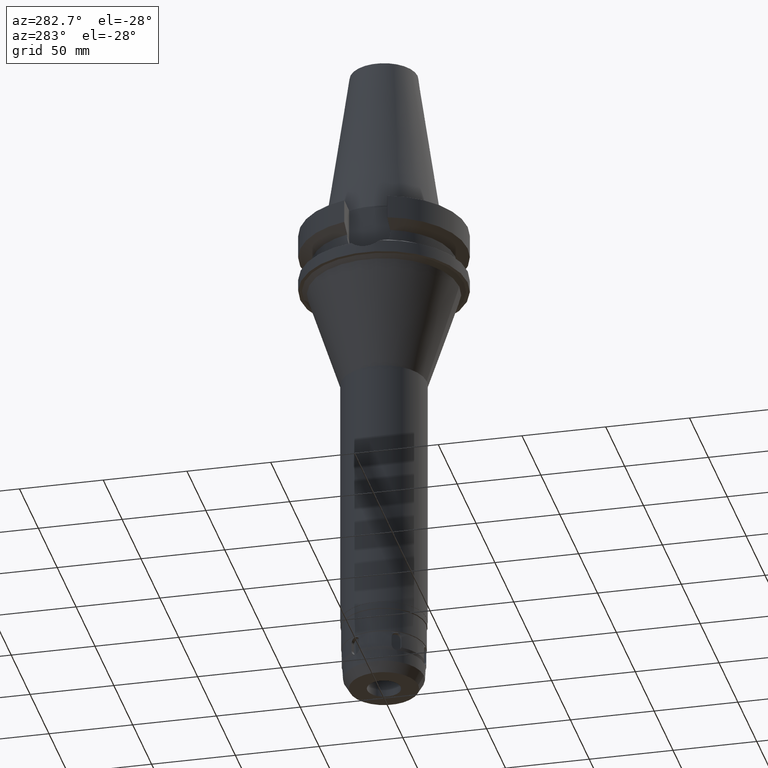
[diagram: clean part render]
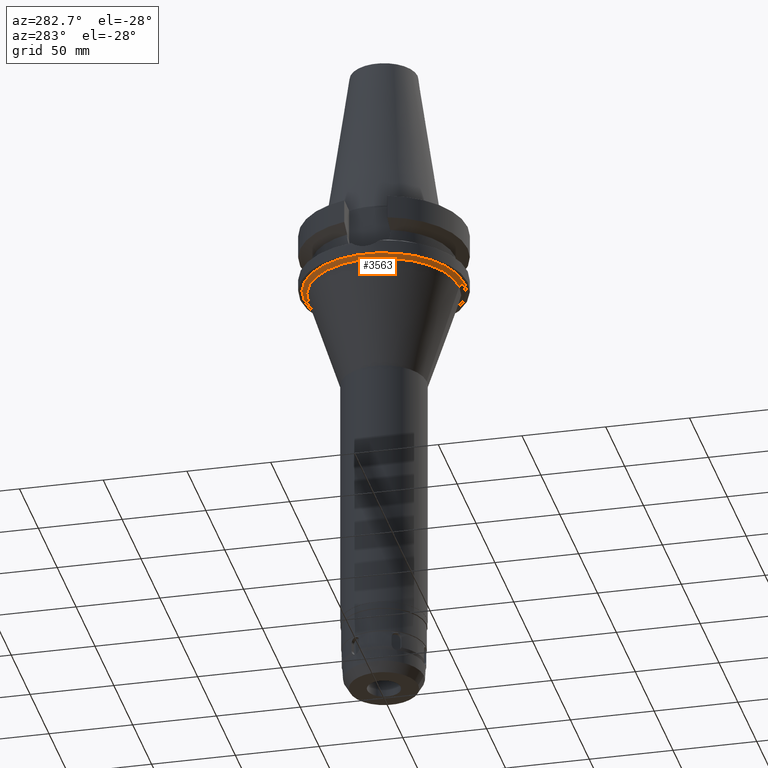
[diagram: same view with one face highlighted and labeled with its STEP entity id]
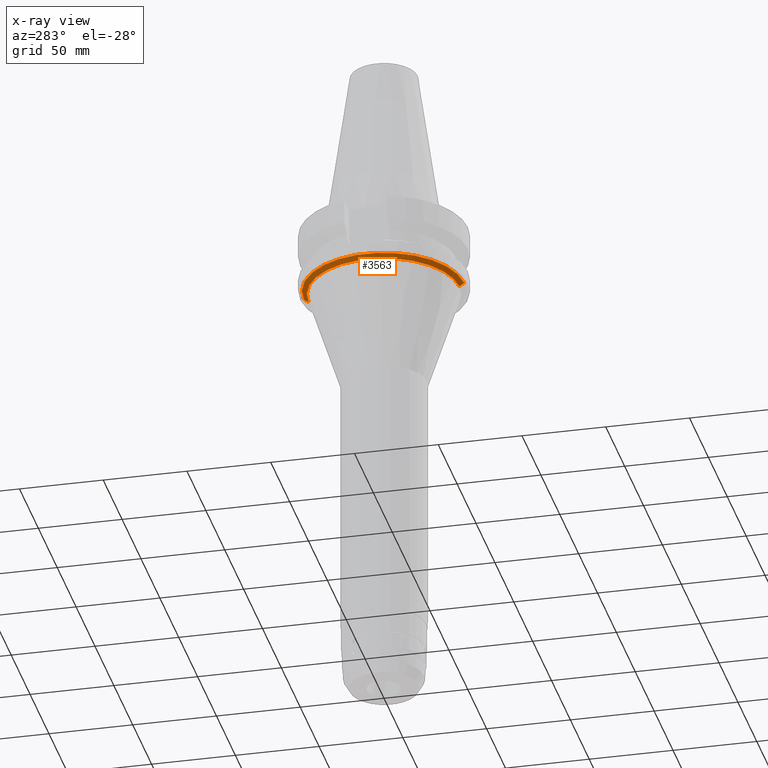
[diagram: x-ray of the same camera — body ghosted, the highlighted face saturated]
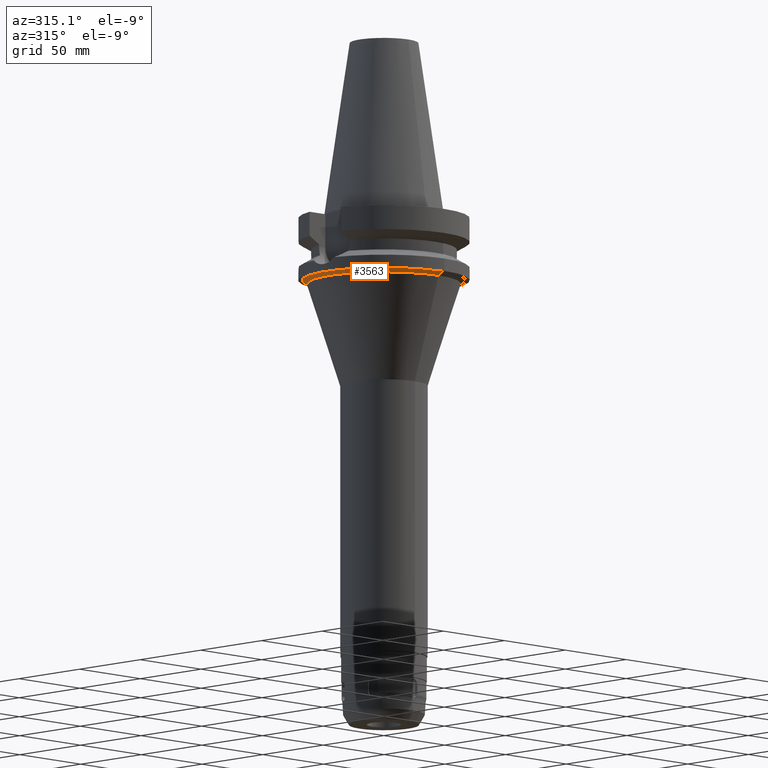
[diagram: same view with one face highlighted and labeled with its STEP entity id]
A machine part, auxiliary view. The second image highlights one B-rep face of the part: STEP entity #3563.
The next image is the same camera in x-ray: the body ghosted, the highlighted face saturated — about 0% of this face is hidden behind the body in this view.
A second angle (auxiliary view) of the same face is appended — the face is thin or edge-on in the first view.
In plain terms, the highlighted conical surface has half-angle 54 deg.
Its self-contained STEP definition (entity closure, byte-faithful):
#1346=DIRECTION('',(0.E0,-8.090169943747E-1,-5.877852522929E-1));
#1347=VECTOR('',#1346,3.526798251428E0);
#1348=CARTESIAN_POINT('',(0.E0,4.782487559721E1,-3.8E1));
#1349=LINE('',#1348,#1347);
#1353=DIRECTION('',(0.E0,8.090169943747E-1,-5.877852522929E-1));
#1354=VECTOR('',#1353,3.526798251428E0);
#1355=CARTESIAN_POINT('',(0.E0,-4.782487559721E1,-3.8E1));
#1356=LINE('',#1355,#1354);
#1360=CARTESIAN_POINT('',(0.E0,0.E0,-4.0073E1));
#1361=DIRECTION('',(0.E0,0.E0,-1.E0));
#1362=DIRECTION('',(0.E0,-1.E0,0.E0));
#1363=AXIS2_PLACEMENT_3D('',#1360,#1361,#1362);
#1384=CARTESIAN_POINT('',(0.E0,0.E0,-3.8E1));
#1385=DIRECTION('',(0.E0,0.E0,-1.E0));
#1386=DIRECTION('',(0.E0,-1.E0,0.E0));
#1387=AXIS2_PLACEMENT_3D('',#1384,#1385,#1386);
#2489=CARTESIAN_POINT('',(0.E0,4.497163587607E1,-4.0073E1));
#2490=VERTEX_POINT('',#2489);
#2491=CARTESIAN_POINT('',(0.E0,-4.497163587607E1,-4.0073E1));
#2492=VERTEX_POINT('',#2491);
#2493=CARTESIAN_POINT('',(0.E0,4.782487559721E1,-3.8E1));
#2494=VERTEX_POINT('',#2493);
#2495=CARTESIAN_POINT('',(0.E0,-4.782487559721E1,-3.8E1));
#2496=VERTEX_POINT('',#2495);
#3551=CARTESIAN_POINT('',(0.E0,0.E0,-3.90365E1));
#3552=DIRECTION('',(0.E0,0.E0,1.E0));
#3553=DIRECTION('',(0.E0,1.E0,0.E0));
#3554=AXIS2_PLACEMENT_3D('',#3551,#3552,#3553);
#3555=CONICAL_SURFACE('',#3554,4.639825573664E1,5.4E1);
#3556=ORIENTED_EDGE('',*,*,#3541,.F.);
#3558=ORIENTED_EDGE('',*,*,#3557,.F.);
#3559=ORIENTED_EDGE('',*,*,#3544,.T.);
#3560=ORIENTED_EDGE('',*,*,#3515,.T.);
#3561=EDGE_LOOP('',(#3556,#3558,#3559,#3560));
#3562=FACE_OUTER_BOUND('',#3561,.F.);
#1364=CIRCLE('',#1363,4.497163587607E1);
#1388=CIRCLE('',#1387,4.782487559721E1);
#3515=EDGE_CURVE('',#2492,#2490,#1364,.T.);
#3541=EDGE_CURVE('',#2494,#2490,#1349,.T.);
#3544=EDGE_CURVE('',#2496,#2492,#1356,.T.);
#3557=EDGE_CURVE('',#2496,#2494,#1388,.T.);
#3563=ADVANCED_FACE('',(#3562),#3555,.T.);